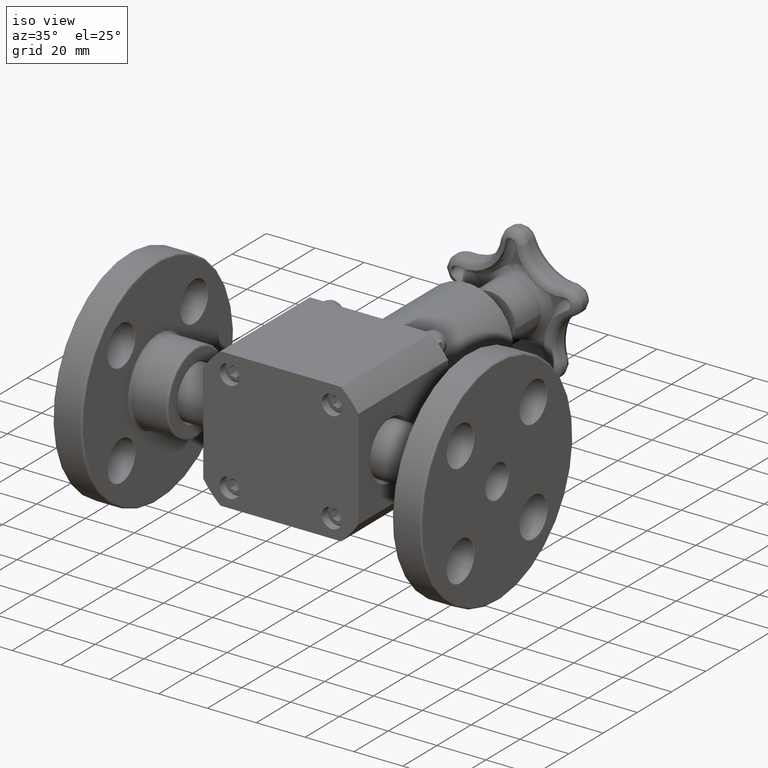
[diagram: clean part render]
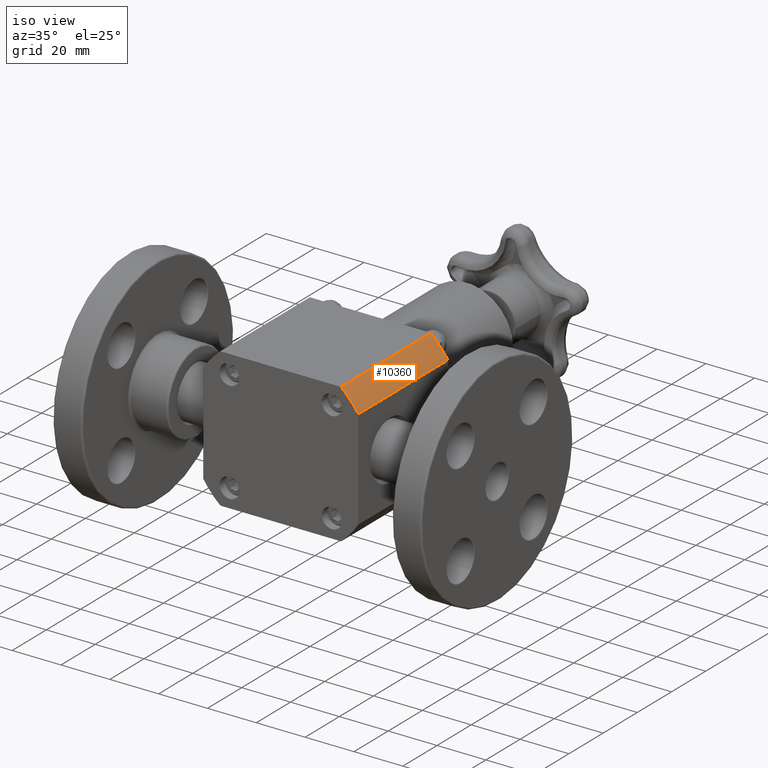
[diagram: same view with one face highlighted and labeled with its STEP entity id]
A machine part, iso view. The second image highlights one B-rep face of the part: STEP entity #10360.
In plain terms, the highlighted cylindrical surface (partial cylindrical patch) has radius 37.7825 mm, axis along (-0, 1, 0).
Its self-contained STEP definition (entity closure, byte-faithful):
#9837=CARTESIAN_POINT('',(0.973155306207597,2.060000000000000,1.125000000000000));
#9838=VERTEX_POINT('',#9837);
#9845=CARTESIAN_POINT('',(1.250000000000000,2.060000000000000,0.806322671143508));
#9846=VERTEX_POINT('',#9845);
#9847=CARTESIAN_POINT('',(1.748383E-016,2.060000000000000,5.245148E-016));
#9848=DIRECTION('',(0.0,-1.0,0.0));
#9849=DIRECTION('',(1.0,0.0,0.0));
#9850=AXIS2_PLACEMENT_3D('',#9847,#9848,#9849);
#9851=CIRCLE('',#9850,1.487500000000000);
#9852=EDGE_CURVE('',#9846,#9838,#9851,.T.);
#10053=CARTESIAN_POINT('',(1.250000000000000,7.226120E-045,0.806322671143507));
#10054=VERTEX_POINT('',#10053);
#10055=CARTESIAN_POINT('',(1.250000000000000,7.226120E-045,0.806322671143507));
#10056=DIRECTION('',(0.0,1.0,0.0));
#10057=VECTOR('',#10056,2.060000000000000);
#10058=LINE('',#10055,#10057);
#10059=EDGE_CURVE('',#10054,#9846,#10058,.T.);
#10336=CARTESIAN_POINT('',(0.0,0.0,0.0));
#10337=DIRECTION('',(-5.780896E-045,1.0,0.0));
#10338=DIRECTION('',(-0.654222054593342,-3.781990E-045,-0.756302521008403));
#10339=AXIS2_PLACEMENT_3D('',#10336,#10337,#10338);
#10340=CYLINDRICAL_SURFACE('',#10339,1.487500000000000);
#10341=CARTESIAN_POINT('',(0.973155306207596,5.625709E-045,1.125000000000000));
#10342=VERTEX_POINT('',#10341);
#10343=CARTESIAN_POINT('',(0.973155306207596,5.625709E-045,1.125000000000000));
#10344=DIRECTION('',(0.0,1.0,0.0));
#10345=VECTOR('',#10344,2.060000000000000);
#10346=LINE('',#10343,#10345);
#10347=EDGE_CURVE('',#10342,#9838,#10346,.T.);
#10348=ORIENTED_EDGE('',*,*,#10347,.F.);
#10349=CARTESIAN_POINT('',(0.0,0.0,0.0));
#10350=DIRECTION('',(2.474261E-045,-1.000000000000000,2.860328E-045));
#10351=DIRECTION('',(-0.654222054593342,-3.781990E-045,-0.756302521008403));
#10352=AXIS2_PLACEMENT_3D('',#10349,#10350,#10351);
#10353=CIRCLE('',#10352,1.487500000000000);
#10354=EDGE_CURVE('',#10054,#10342,#10353,.T.);
#10355=ORIENTED_EDGE('',*,*,#10354,.F.);
#10356=ORIENTED_EDGE('',*,*,#10059,.T.);
#10357=ORIENTED_EDGE('',*,*,#9852,.T.);
#10358=EDGE_LOOP('',(#10348,#10355,#10356,#10357));
#10359=FACE_OUTER_BOUND('',#10358,.T.);
#10360=ADVANCED_FACE('',(#10359),#10340,.T.);